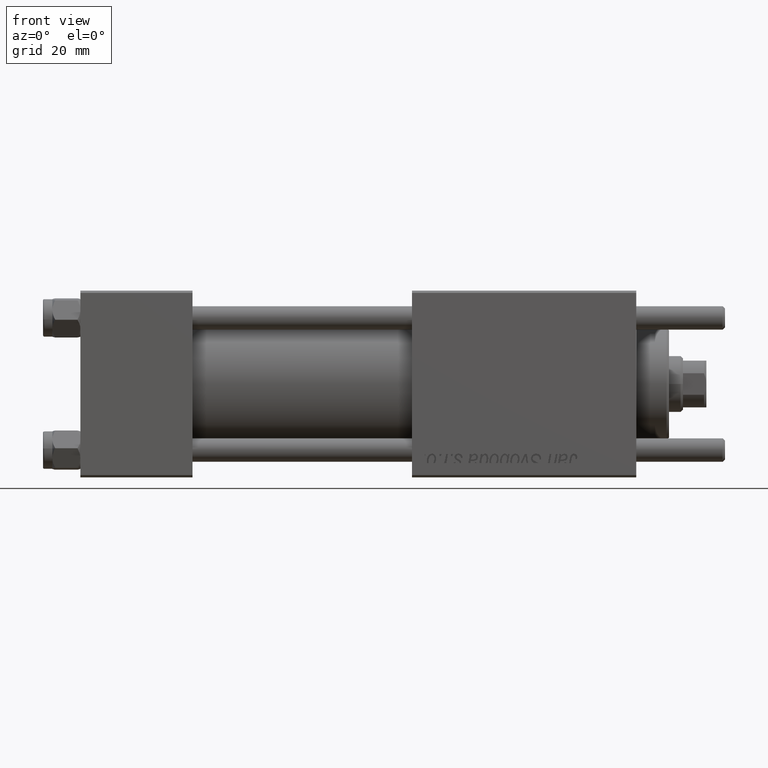
[diagram: clean part render]
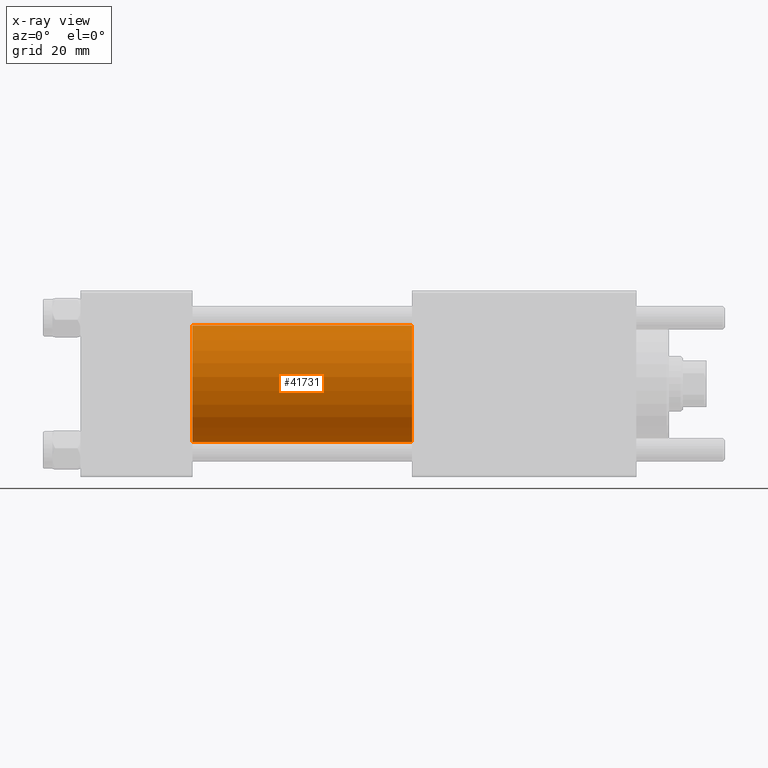
[diagram: x-ray — body ghosted, one internal face saturated and labeled with its STEP entity id]
A machine part, front view, then the same camera in x-ray: the body is ghosted and one INTERNAL B-rep face — a face not visible from any outside direction — is saturated and labeled: STEP entity #41731.
In plain terms, the highlighted cylindrical surface (partial cylindrical patch) has radius 12.5 mm, axis along (-1, -0, -0).
Its self-contained STEP definition (entity closure, byte-faithful):
#3219 = EDGE_CURVE ( 'NONE', #21710, #18477, #12308, .T. ) ;
#4482 = DIRECTION ( 'NONE',  ( 0.000000000000000000, 0.000000000000000000, 1.000000000000000000 ) ) ;
#4770 = CYLINDRICAL_SURFACE ( 'NONE', #51937, 12.49999999999999645 ) ;
#5345 = FACE_OUTER_BOUND ( 'NONE', #56296, .T. ) ;
#7211 = LINE ( 'NONE', #24998, #32000 ) ;
#8004 = DIRECTION ( 'NONE',  ( -1.000000000000000000, -0.000000000000000000, -0.000000000000000000 ) ) ;
#8419 = CARTESIAN_POINT ( 'NONE',  ( 24.00000000000000000, -2.602085213965210642E-15, 0.000000000000000000 ) ) ;
#11032 = VECTOR ( 'NONE', #8004, 1000.000000000000000 ) ;
#11253 = VERTEX_POINT ( 'NONE', #54927 ) ;
#12308 = LINE ( 'NONE', #29791, #11032 ) ;
#13579 = EDGE_CURVE ( 'NONE', #11253, #36745, #7211, .T. ) ;
#15255 = CIRCLE ( 'NONE', #53768, 12.49999999999999645 ) ;
#15377 = ORIENTED_EDGE ( 'NONE', *, *, #56515, .F. ) ;
#17511 = CARTESIAN_POINT ( 'NONE',  ( 71.00000000000001421, -2.602085213965210642E-15, 0.000000000000000000 ) ) ;
#18477 = VERTEX_POINT ( 'NONE', #28767 ) ;
#21710 = VERTEX_POINT ( 'NONE', #55602 ) ;
#22299 = ORIENTED_EDGE ( 'NONE', *, *, #13579, .T. ) ;
#22353 = CIRCLE ( 'NONE', #38003, 12.49999999999999645 ) ;
#23346 = ORIENTED_EDGE ( 'NONE', *, *, #48412, .T. ) ;
#24998 = CARTESIAN_POINT ( 'NONE',  ( 71.00000000000001421, -1.071276715031019515E-15, -12.49999999999999645 ) ) ;
#28767 = CARTESIAN_POINT ( 'NONE',  ( 24.00000000000000000, -2.602085213965210642E-15, 12.49999999999999645 ) ) ;
#29639 = DIRECTION ( 'NONE',  ( 1.000000000000000000, 0.000000000000000000, 0.000000000000000000 ) ) ;
#29791 = CARTESIAN_POINT ( 'NONE',  ( 71.00000000000001421, -2.602085213965210642E-15, 12.49999999999999645 ) ) ;
#29841 = DIRECTION ( 'NONE',  ( 0.000000000000000000, 0.000000000000000000, -1.000000000000000000 ) ) ;
#31431 = CARTESIAN_POINT ( 'NONE',  ( 71.00000000000001421, -2.602085213965210642E-15, 0.000000000000000000 ) ) ;
#32000 = VECTOR ( 'NONE', #33296, 1000.000000000000000 ) ;
#33296 = DIRECTION ( 'NONE',  ( -1.000000000000000000, -0.000000000000000000, -0.000000000000000000 ) ) ;
#33853 = DIRECTION ( 'NONE',  ( 1.000000000000000000, 0.000000000000000000, 0.000000000000000000 ) ) ;
#35076 = DIRECTION ( 'NONE',  ( 0.000000000000000000, 0.000000000000000000, -1.000000000000000000 ) ) ;
#36745 = VERTEX_POINT ( 'NONE', #40517 ) ;
#38003 = AXIS2_PLACEMENT_3D ( 'NONE', #17511, #33853, #29841 ) ;
#39749 = DIRECTION ( 'NONE',  ( -1.000000000000000000, -0.000000000000000000, -0.000000000000000000 ) ) ;
#40517 = CARTESIAN_POINT ( 'NONE',  ( 24.00000000000000000, -1.071276715031019515E-15, -12.49999999999999645 ) ) ;
#41731 = ADVANCED_FACE ( 'NONE', ( #5345 ), #4770, .F. ) ;
#45302 = ORIENTED_EDGE ( 'NONE', *, *, #3219, .F. ) ;
#48412 = EDGE_CURVE ( 'NONE', #21710, #11253, #22353, .T. ) ;
#51937 = AXIS2_PLACEMENT_3D ( 'NONE', #31431, #39749, #4482 ) ;
#53768 = AXIS2_PLACEMENT_3D ( 'NONE', #8419, #29639, #35076 ) ;
#54927 = CARTESIAN_POINT ( 'NONE',  ( 71.00000000000001421, -1.071276715031019515E-15, -12.49999999999999645 ) ) ;
#55602 = CARTESIAN_POINT ( 'NONE',  ( 71.00000000000001421, -2.602085213965210642E-15, 12.49999999999999645 ) ) ;
#56296 = EDGE_LOOP ( 'NONE', ( #23346, #22299, #15377, #45302 ) ) ;
#56515 = EDGE_CURVE ( 'NONE', #18477, #36745, #15255, .T. ) ;